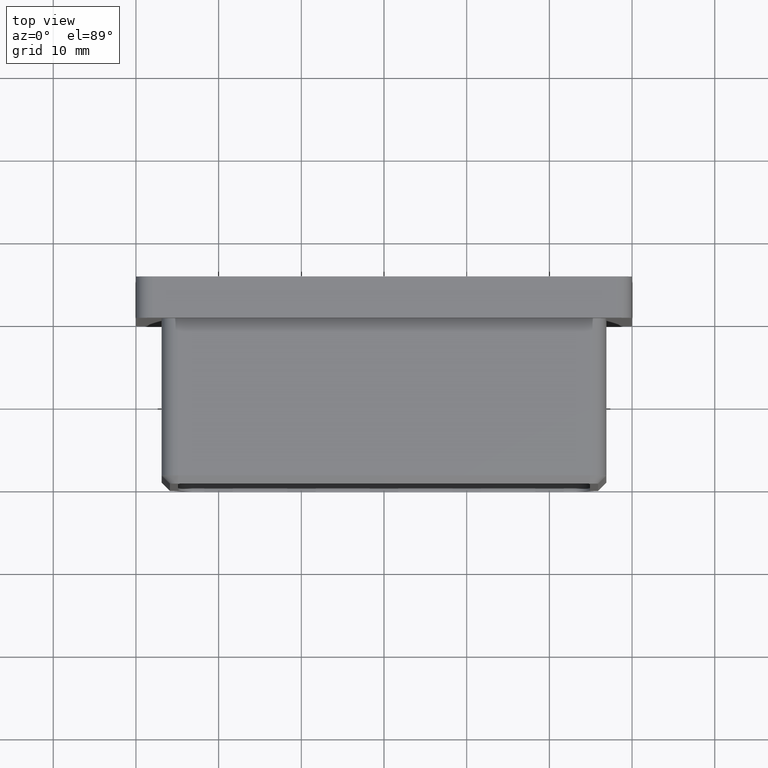
[diagram: clean part render]
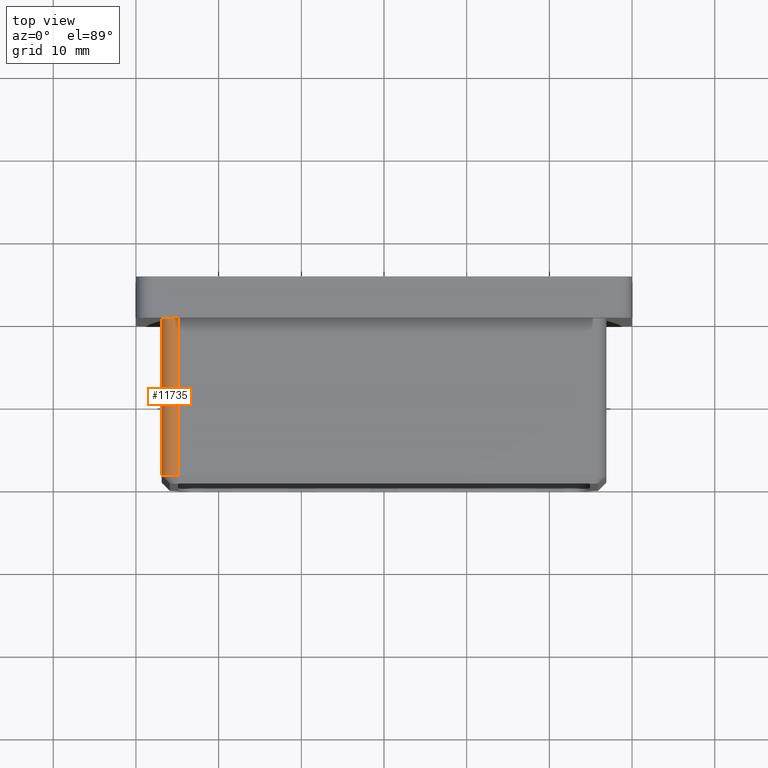
[diagram: same view with one face highlighted and labeled with its STEP entity id]
A machine part, top view. The second image highlights one B-rep face of the part: STEP entity #11735.
In plain terms, the highlighted cylindrical surface (edge-blend (fillet) strip) has radius 2 mm, axis along (-0, 1, 0).
Its self-contained STEP definition (entity closure, byte-faithful):
#689 = ORIENTED_EDGE ( 'NONE', *, *, #13330, .F. ) ;
#802 = ORIENTED_EDGE ( 'NONE', *, *, #16804, .F. ) ;
#1372 = VERTEX_POINT ( 'NONE', #6496 ) ;
#1553 = DIRECTION ( 'NONE',  ( -0.0000000000000000000, 1.000000000000000000, 0.0000000000000000000 ) ) ;
#1700 = ORIENTED_EDGE ( 'NONE', *, *, #18951, .T. ) ;
#2364 = CARTESIAN_POINT ( 'NONE',  ( -24.89999999999999900, 0.0000000000000000000, 26.89999999999999900 ) ) ;
#3472 = CIRCLE ( 'NONE', #4593, 2.000000000000001800 ) ;
#4523 = CARTESIAN_POINT ( 'NONE',  ( -24.89999999999999900, -20.00000000000000000, 26.89999999999999900 ) ) ;
#4593 = AXIS2_PLACEMENT_3D ( 'NONE', #14083, #5363, #15561 ) ;
#5363 = DIRECTION ( 'NONE',  ( 0.0000000000000000000, 1.000000000000000000, 0.0000000000000000000 ) ) ;
#5695 = DIRECTION ( 'NONE',  ( 0.0000000000000000000, 0.0000000000000000000, -1.000000000000000000 ) ) ;
#5755 = ORIENTED_EDGE ( 'NONE', *, *, #14611, .F. ) ;
#6070 = LINE ( 'NONE', #16594, #6528 ) ;
#6496 = CARTESIAN_POINT ( 'NONE',  ( -24.89999999999999900, -19.00000000000000000, 26.89999999999999900 ) ) ;
#6528 = VECTOR ( 'NONE', #1553, 1000.000000000000000 ) ;
#6824 = VERTEX_POINT ( 'NONE', #13336 ) ;
#7247 = LINE ( 'NONE', #4523, #12805 ) ;
#7258 = VERTEX_POINT ( 'NONE', #2364 ) ;
#8830 = EDGE_LOOP ( 'NONE', ( #5755, #1700, #689, #802 ) ) ;
#9098 = DIRECTION ( 'NONE',  ( -0.0000000000000000000, -1.000000000000000000, -0.0000000000000000000 ) ) ;
#9334 = CARTESIAN_POINT ( 'NONE',  ( -24.89999999999999900, -20.00000000000000000, 24.89999999999999900 ) ) ;
#10640 = DIRECTION ( 'NONE',  ( -0.0000000000000000000, 1.000000000000000000, 0.0000000000000000000 ) ) ;
#10786 = VERTEX_POINT ( 'NONE', #15012 ) ;
#11735 = ADVANCED_FACE ( 'NONE', ( #12198 ), #13139, .T. ) ;
#12198 = FACE_OUTER_BOUND ( 'NONE', #8830, .T. ) ;
#12805 = VECTOR ( 'NONE', #9098, 1000.000000000000000 ) ;
#13139 = CYLINDRICAL_SURFACE ( 'NONE', #13276, 2.000000000000001800 ) ;
#13276 = AXIS2_PLACEMENT_3D ( 'NONE', #9334, #10640, #18281 ) ;
#13330 = EDGE_CURVE ( 'NONE', #7258, #1372, #7247, .T. ) ;
#13336 = CARTESIAN_POINT ( 'NONE',  ( -26.89999999999999900, -19.00000000000000000, 24.89999999999999900 ) ) ;
#14083 = CARTESIAN_POINT ( 'NONE',  ( -24.89999999999999900, 0.0000000000000000000, 24.89999999999999900 ) ) ;
#14611 = EDGE_CURVE ( 'NONE', #6824, #10786, #6070, .T. ) ;
#14756 = AXIS2_PLACEMENT_3D ( 'NONE', #19007, #18949, #5695 ) ;
#15012 = CARTESIAN_POINT ( 'NONE',  ( -26.89999999999999900, 0.0000000000000000000, 24.89999999999999900 ) ) ;
#15248 = CIRCLE ( 'NONE', #14756, 2.000000000000001800 ) ;
#15561 = DIRECTION ( 'NONE',  ( 0.0000000000000000000, 0.0000000000000000000, 1.000000000000000000 ) ) ;
#16594 = CARTESIAN_POINT ( 'NONE',  ( -26.89999999999999900, -20.00000000000000000, 24.89999999999999900 ) ) ;
#16804 = EDGE_CURVE ( 'NONE', #10786, #7258, #3472, .T. ) ;
#18281 = DIRECTION ( 'NONE',  ( 0.0000000000000000000, 0.0000000000000000000, 1.000000000000000000 ) ) ;
#18949 = DIRECTION ( 'NONE',  ( 0.0000000000000000000, 1.000000000000000000, 0.0000000000000000000 ) ) ;
#18951 = EDGE_CURVE ( 'NONE', #6824, #1372, #15248, .T. ) ;
#19007 = CARTESIAN_POINT ( 'NONE',  ( -24.89999999999999900, -19.00000000000000000, 24.89999999999999900 ) ) ;